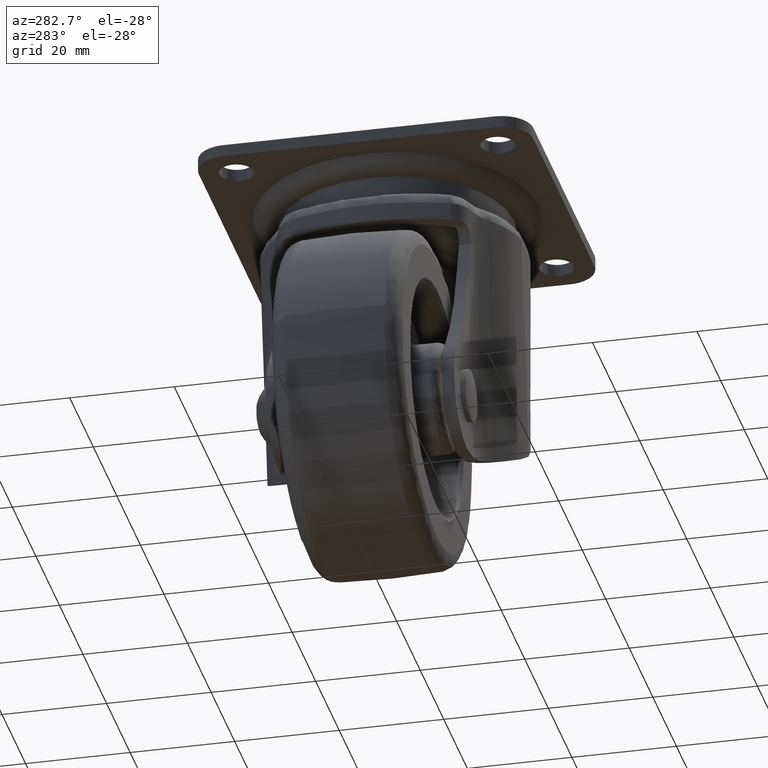
[diagram: clean part render]
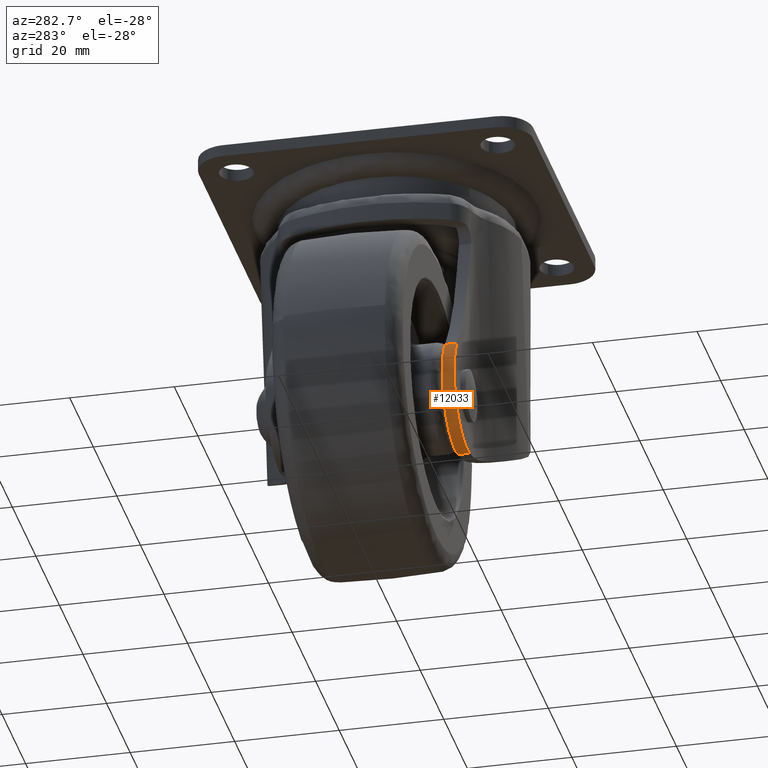
[diagram: same view with one face highlighted and labeled with its STEP entity id]
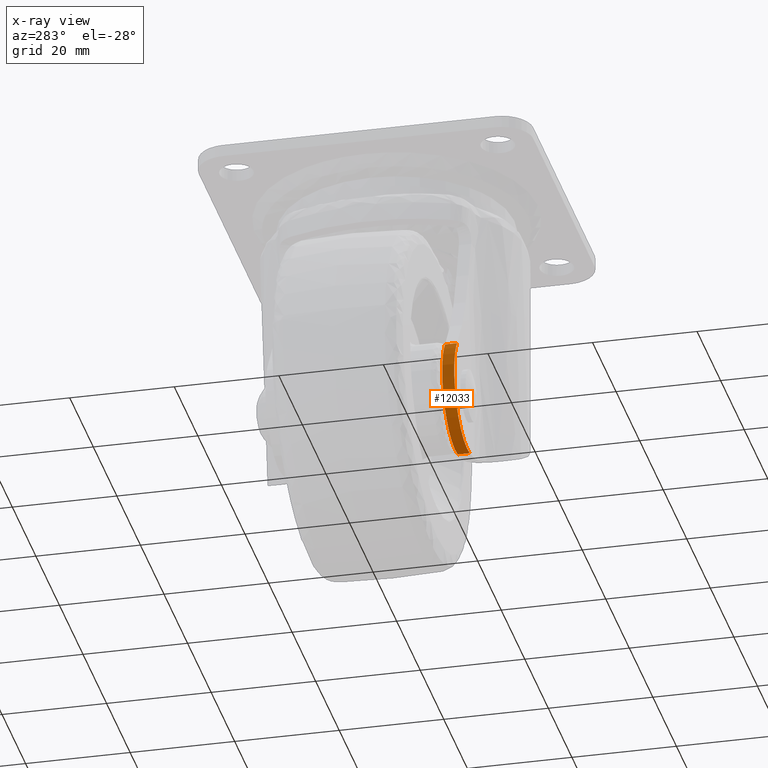
[diagram: x-ray of the same camera — body ghosted, the highlighted face saturated]
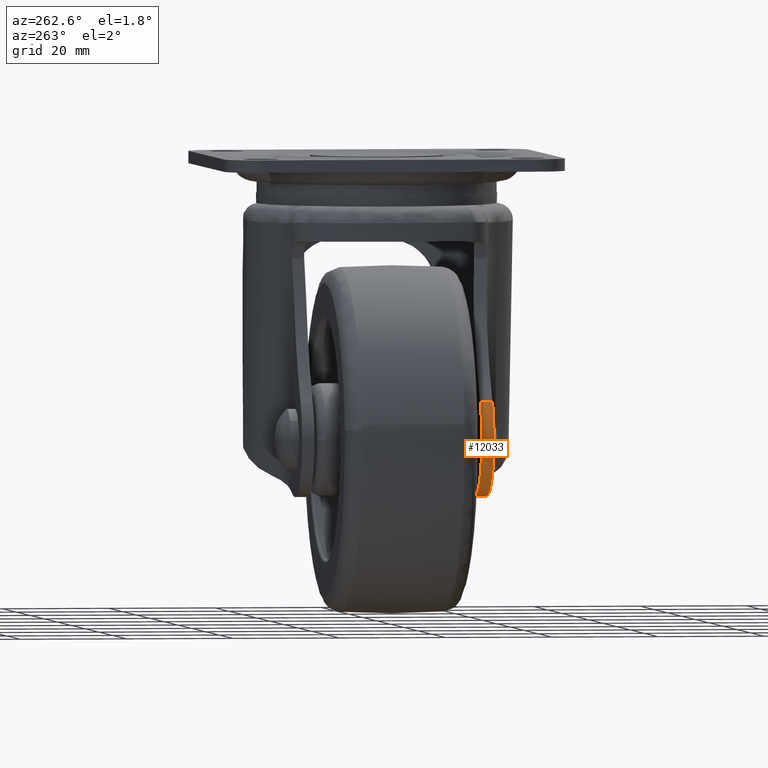
[diagram: same view with one face highlighted and labeled with its STEP entity id]
A machine part, auxiliary view. The second image highlights one B-rep face of the part: STEP entity #12033.
The next image is the same camera in x-ray: the body ghosted, the highlighted face saturated — about 0% of this face is hidden behind the body in this view.
A second angle (auxiliary view) of the same face is appended — the face is thin or edge-on in the first view.
In plain terms, the highlighted face is a freeform B-spline surface patch.
Its self-contained STEP definition (entity closure, byte-faithful):
#11325=CARTESIAN_POINT('',(-18.038341501875252,-15.750000000000000,-63.025367740092101));
#11326=VERTEX_POINT('',#11325);
#11334=CARTESIAN_POINT('',(-28.822117566772601,-15.750000000000000,-45.356610981370402));
#11335=VERTEX_POINT('',#11334);
#11336=CARTESIAN_POINT('',(-18.038341501875252,-15.750000000000000,-63.025367740092101));
#11337=CARTESIAN_POINT('',(-18.554046569582830,-15.750000000000011,-63.131240613054388));
#11338=CARTESIAN_POINT('',(-19.670492156994481,-15.749999999999970,-63.277911538569931));
#11339=CARTESIAN_POINT('',(-21.501191643471689,-15.750000000000011,-63.236772363911072));
#11340=CARTESIAN_POINT('',(-23.436572480679271,-15.750000000000060,-62.845310907256241));
#11341=CARTESIAN_POINT('',(-25.068907730057369,-15.749999999999959,-62.181362963328240));
#11342=CARTESIAN_POINT('',(-26.524681134781119,-15.750000000000060,-61.328718439386712));
#11343=CARTESIAN_POINT('',(-27.685681365716889,-15.749999999999890,-60.411472803260168));
#11344=CARTESIAN_POINT('',(-28.889080096709719,-15.750000000000121,-59.129479427761552));
#11345=CARTESIAN_POINT('',(-29.845159988271170,-15.750000000000149,-57.733886777241153));
#11346=CARTESIAN_POINT('',(-30.657738800361340,-15.749999999999771,-55.976580849995059));
#11347=CARTESIAN_POINT('',(-31.112356747308642,-15.750000000000369,-54.273229920972931));
#11348=CARTESIAN_POINT('',(-31.288001818027588,-15.749999999999890,-52.487784110099838));
#11349=CARTESIAN_POINT('',(-31.210116056305580,-15.749999999999890,-50.940286477874167));
#11350=CARTESIAN_POINT('',(-30.918750875953659,-15.750000000000179,-49.456462494335263));
#11351=CARTESIAN_POINT('',(-30.445525323058529,-15.749999999999959,-48.020237236204792));
#11352=CARTESIAN_POINT('',(-29.755009783752890,-15.749999999999680,-46.633168045882122));
#11353=CARTESIAN_POINT('',(-29.130049520670720,-15.750000000000540,-45.739513570671633));
#11354=CARTESIAN_POINT('',(-28.822117566772601,-15.750000000000000,-45.356610981370402));
#11355=B_SPLINE_CURVE_WITH_KNOTS('',3,(#11336,#11337,#11338,#11339,#11340,#11341,#11342,#11343,#11344,#11345,#11346,#11347,#11348,#11349,#11350,#11351,#11352,#11353,#11354),.UNSPECIFIED.,.F.,.U.,(4,1,1,1,1,1,1,1,1,1,1,1,1,1,1,1,4),(0.000000125032475,1.579386518240913,3.369432058268721,5.475370963725442,7.476005720169606,8.634275713540632,10.529616120827161,11.898464354539810,13.899000454964471,15.583770046788169,17.689668564694539,19.163834912305848,20.953864736333301,22.322715164939378,23.691555225025080,25.481629887087600,26.955722855649299),.UNSPECIFIED.);
#11356=EDGE_CURVE('',#11326,#11335,#11355,.T.);
#11890=CARTESIAN_POINT('',(-18.038341501875252,-18.050000000000001,-63.025367740092101));
#11891=VERTEX_POINT('',#11890);
#11900=CARTESIAN_POINT('',(-28.822117566772601,-18.050000000000001,-45.356610981370402));
#11901=VERTEX_POINT('',#11900);
#11911=CARTESIAN_POINT('',(-18.038341501875252,-18.050000000000001,-63.025367740092101));
#11912=CARTESIAN_POINT('',(-18.554046565463889,-18.050000000000029,-63.131240610171758));
#11913=CARTESIAN_POINT('',(-19.670492167229099,-18.049999999999962,-63.277911546174231));
#11914=CARTESIAN_POINT('',(-21.501191633201600,-18.050000000000011,-63.236772366818720));
#11915=CARTESIAN_POINT('',(-23.436572473115611,-18.050000000000079,-62.845310897864678));
#11916=CARTESIAN_POINT('',(-25.068907732946720,-18.049999999999962,-62.181362972004450));
#11917=CARTESIAN_POINT('',(-26.524681135222721,-18.050000000000079,-61.328718437759733));
#11918=CARTESIAN_POINT('',(-27.685681365245561,-18.049999999999869,-60.411472802393682));
#11919=CARTESIAN_POINT('',(-28.889080096698191,-18.050000000000139,-59.129479427941341));
#11920=CARTESIAN_POINT('',(-29.845159989814800,-18.050000000000161,-57.733886779284028));
#11921=CARTESIAN_POINT('',(-30.657738791305189,-18.049999999999748,-55.976580836198799));
#11922=CARTESIAN_POINT('',(-31.112356772055179,-18.050000000000420,-54.273229965813172));
#11923=CARTESIAN_POINT('',(-31.288001778742689,-18.049999999999859,-52.487784004784537));
#11924=CARTESIAN_POINT('',(-31.210116104633109,-18.049999999999901,-50.940286724090569));
#11925=CARTESIAN_POINT('',(-30.918750805909369,-18.050000000000189,-49.456462154825893));
#11926=CARTESIAN_POINT('',(-30.445525375722379,-18.049999999999962,-48.020237468862682));
#11927=CARTESIAN_POINT('',(-29.755009756694509,-18.049999999999638,-46.633167928297347));
#11928=CARTESIAN_POINT('',(-29.130049525915211,-18.050000000000630,-45.739513593242933));
#11929=CARTESIAN_POINT('',(-28.822117566772601,-18.050000000000001,-45.356610981370402));
#11930=B_SPLINE_CURVE_WITH_KNOTS('',3,(#11911,#11912,#11913,#11914,#11915,#11916,#11917,#11918,#11919,#11920,#11921,#11922,#11923,#11924,#11925,#11926,#11927,#11928,#11929),.UNSPECIFIED.,.F.,.U.,(4,1,1,1,1,1,1,1,1,1,1,1,1,1,1,1,4),(0.000000125032475,1.579386518240913,3.369432058268721,5.475370963725442,7.476005720169606,8.634275713540632,10.529616120827161,11.898464354539810,13.899000454964471,15.583770046788169,17.689668564694539,19.163834912305848,20.953864736333301,22.322715164939378,23.691555225025080,25.481629887087600,26.955722855649299),.UNSPECIFIED.);
#11931=EDGE_CURVE('',#11891,#11901,#11930,.T.);
#11964=CARTESIAN_POINT('',(-18.038341501875252,-15.750000000000000,-63.025367740092101));
#11965=CARTESIAN_POINT('',(-18.038341501875252,-18.050000000000001,-63.025367740092101));
#11966=QUASI_UNIFORM_CURVE('',1,(#11964,#11965),.UNSPECIFIED.,.F.,.U.);
#11967=EDGE_CURVE('',#11326,#11891,#11966,.T.);
#12005=CARTESIAN_POINT('',(-17.645710908564009,-15.692500000000001,-62.937266332091269));
#12006=CARTESIAN_POINT('',(-17.645710908564009,-18.108937500000000,-62.937266332091269));
#12007=CARTESIAN_POINT('',(-25.626271767580189,-15.692500000000003,-64.881981288177954));
#12008=CARTESIAN_POINT('',(-25.626271767580189,-18.108937500000000,-64.881981288177954));
#12009=CARTESIAN_POINT('',(-29.757504589473552,-15.692500000000001,-57.782390929840432));
#12010=CARTESIAN_POINT('',(-29.757504589473552,-18.108937500000000,-57.782390929840432));
#12011=CARTESIAN_POINT('',(-33.888737411366897,-15.692500000000003,-50.682800571502916));
#12012=CARTESIAN_POINT('',(-33.888737411366897,-18.108937500000000,-50.682800571502916));
#12013=CARTESIAN_POINT('',(-28.254843580275139,-15.692500000000001,-44.705300409656459));
#12014=CARTESIAN_POINT('',(-28.254843580275139,-18.108937500000000,-44.705300409656459));
#12022=(BOUNDED_SURFACE()B_SPLINE_SURFACE(1,2,((#12005,#12007,#12009,#12011,#12013),(#12006,#12008,#12010,#12012,#12014)),.UNSPECIFIED.,.F.,.F.,.U.)B_SPLINE_SURFACE_WITH_KNOTS((2,2),(3,2,3),(0.0,2.416437500000001),(0.0,14.615531825455371,29.231063650910741),.UNSPECIFIED.)GEOMETRIC_REPRESENTATION_ITEM()RATIONAL_B_SPLINE_SURFACE(((1.0,0.801253812691061,1.0,0.801253812691061,1.0),(1.0,0.801253812691061,1.0,0.801253812691061,1.0)))REPRESENTATION_ITEM('')SURFACE());
#12023=CARTESIAN_POINT('',(-28.822117566772601,-15.750000000000000,-45.356610981370402));
#12024=CARTESIAN_POINT('',(-28.822117566772601,-18.050000000000001,-45.356610981370402));
#12025=QUASI_UNIFORM_CURVE('',1,(#12023,#12024),.UNSPECIFIED.,.F.,.U.);
#12026=EDGE_CURVE('',#11335,#11901,#12025,.T.);
#12027=ORIENTED_EDGE('',*,*,#12026,.F.);
#12028=ORIENTED_EDGE('',*,*,#11356,.F.);
#12029=ORIENTED_EDGE('',*,*,#11967,.T.);
#12030=ORIENTED_EDGE('',*,*,#11931,.T.);
#12031=EDGE_LOOP('',(#12027,#12028,#12029,#12030));
#12032=FACE_OUTER_BOUND('',#12031,.T.);
#12033=ADVANCED_FACE('',(#12032),#12022,.T.);